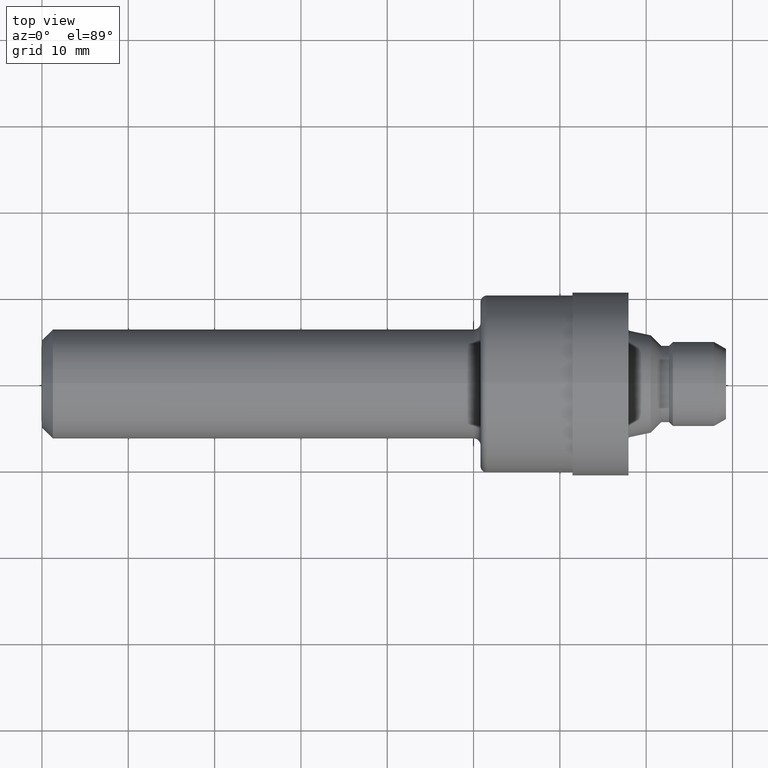
[diagram: clean part render]
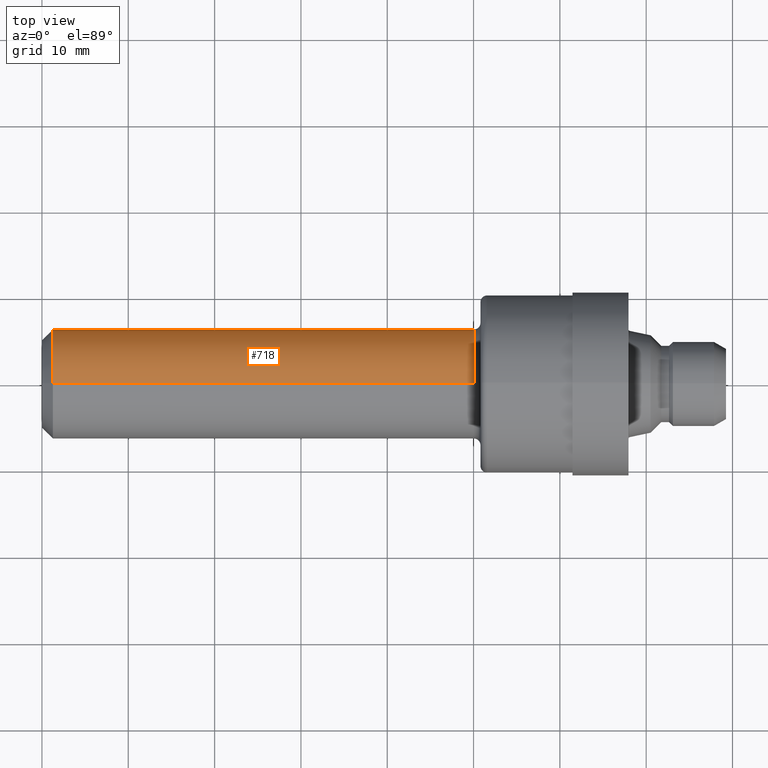
[diagram: same view with one face highlighted and labeled with its STEP entity id]
A machine part, top view. The second image highlights one B-rep face of the part: STEP entity #718.
In plain terms, the highlighted cylindrical surface (partial cylindrical patch) has radius 6.35 mm, axis along (-1, -0, -0).
Its self-contained STEP definition (entity closure, byte-faithful):
#17 = CARTESIAN_POINT ( 'NONE',  ( 0.05000000000000000278, 3.061616997868383018E-17, -0.2500000000000000000 ) ) ;
#18 = VERTEX_POINT ( 'NONE', #723 ) ;
#66 = ORIENTED_EDGE ( 'NONE', *, *, #436, .F. ) ;
#84 = VERTEX_POINT ( 'NONE', #17 ) ;
#117 = VECTOR ( 'NONE', #406, 39.37007874015748143 ) ;
#129 = CIRCLE ( 'NONE', #393, 0.2500000000000000000 ) ;
#134 = CARTESIAN_POINT ( 'NONE',  ( 0.05000000000000000278, 0.0000000000000000000, 0.0000000000000000000 ) ) ;
#136 = DIRECTION ( 'NONE',  ( -1.000000000000000000, -0.0000000000000000000, -0.0000000000000000000 ) ) ;
#137 = EDGE_CURVE ( 'NONE', #819, #84, #554, .T. ) ;
#139 = DIRECTION ( 'NONE',  ( 0.0000000000000000000, 0.0000000000000000000, 1.000000000000000000 ) ) ;
#162 = ORIENTED_EDGE ( 'NONE', *, *, #288, .F. ) ;
#175 = CARTESIAN_POINT ( 'NONE',  ( 1.969999999999999973, 0.0000000000000000000, 0.0000000000000000000 ) ) ;
#179 = DIRECTION ( 'NONE',  ( -1.000000000000000000, -0.0000000000000000000, -0.0000000000000000000 ) ) ;
#193 = DIRECTION ( 'NONE',  ( 0.0000000000000000000, 0.0000000000000000000, 1.000000000000000000 ) ) ;
#197 = AXIS2_PLACEMENT_3D ( 'NONE', #463, #454, #400 ) ;
#199 = CARTESIAN_POINT ( 'NONE',  ( 0.0000000000000000000, 3.061616997868383018E-17, -0.2500000000000000000 ) ) ;
#254 = FACE_OUTER_BOUND ( 'NONE', #559, .T. ) ;
#276 = ORIENTED_EDGE ( 'NONE', *, *, #469, .T. ) ;
#285 = ORIENTED_EDGE ( 'NONE', *, *, #137, .T. ) ;
#288 = EDGE_CURVE ( 'NONE', #790, #18, #703, .T. ) ;
#325 = CARTESIAN_POINT ( 'NONE',  ( 0.0000000000000000000, 0.0000000000000000000, 0.2500000000000000000 ) ) ;
#366 = AXIS2_PLACEMENT_3D ( 'NONE', #175, #179, #193 ) ;
#381 = DIRECTION ( 'NONE',  ( -1.000000000000000000, -0.0000000000000000000, -0.0000000000000000000 ) ) ;
#393 = AXIS2_PLACEMENT_3D ( 'NONE', #134, #136, #139 ) ;
#400 = DIRECTION ( 'NONE',  ( 0.0000000000000000000, 0.0000000000000000000, 1.000000000000000000 ) ) ;
#406 = DIRECTION ( 'NONE',  ( -1.000000000000000000, -0.0000000000000000000, -0.0000000000000000000 ) ) ;
#436 = EDGE_CURVE ( 'NONE', #18, #84, #129, .T. ) ;
#454 = DIRECTION ( 'NONE',  ( -1.000000000000000000, -0.0000000000000000000, -0.0000000000000000000 ) ) ;
#463 = CARTESIAN_POINT ( 'NONE',  ( 0.0000000000000000000, 0.0000000000000000000, 0.0000000000000000000 ) ) ;
#469 = EDGE_CURVE ( 'NONE', #790, #819, #580, .T. ) ;
#538 = VECTOR ( 'NONE', #381, 39.37007874015748143 ) ;
#548 = CYLINDRICAL_SURFACE ( 'NONE', #197, 0.2500000000000000000 ) ;
#554 = LINE ( 'NONE', #199, #117 ) ;
#559 = EDGE_LOOP ( 'NONE', ( #276, #285, #66, #162 ) ) ;
#580 = CIRCLE ( 'NONE', #366, 0.2500000000000000000 ) ;
#634 = CARTESIAN_POINT ( 'NONE',  ( 1.969999999999999973, 0.0000000000000000000, 0.2500000000000000000 ) ) ;
#703 = LINE ( 'NONE', #325, #538 ) ;
#708 = CARTESIAN_POINT ( 'NONE',  ( 1.969999999999999973, 3.245314017740486209E-17, -0.2500000000000000000 ) ) ;
#718 = ADVANCED_FACE ( 'NONE', ( #254 ), #548, .T. ) ;
#723 = CARTESIAN_POINT ( 'NONE',  ( 0.05000000000000000278, 0.0000000000000000000, 0.2500000000000000000 ) ) ;
#790 = VERTEX_POINT ( 'NONE', #634 ) ;
#819 = VERTEX_POINT ( 'NONE', #708 ) ;